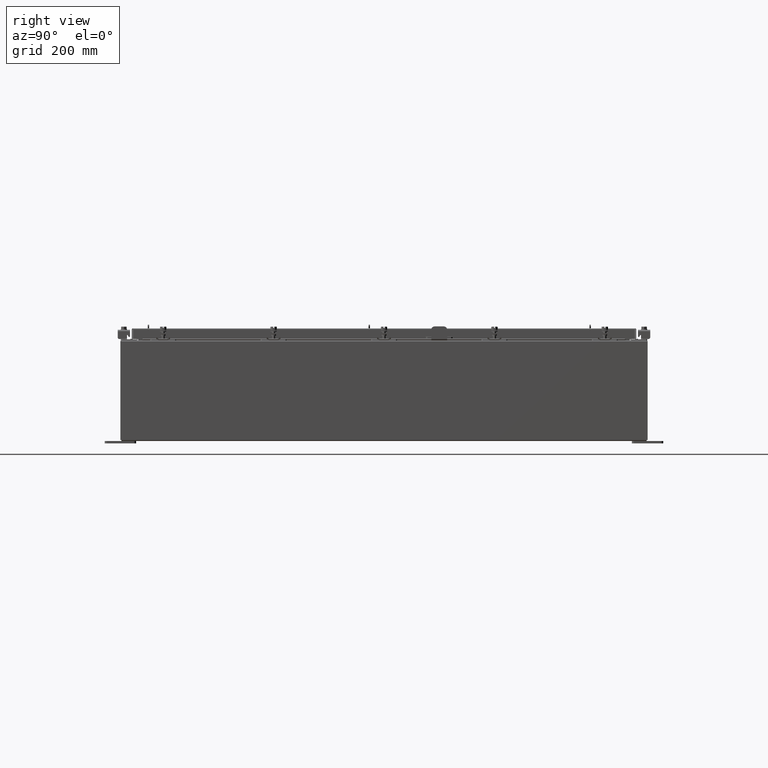
[diagram: clean part render]
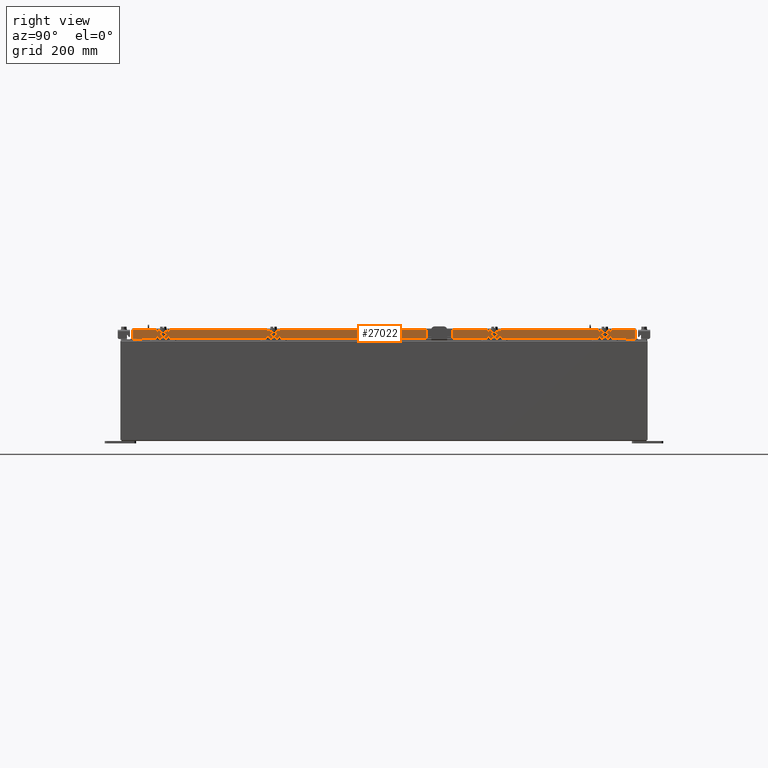
[diagram: same view with one face highlighted and labeled with its STEP entity id]
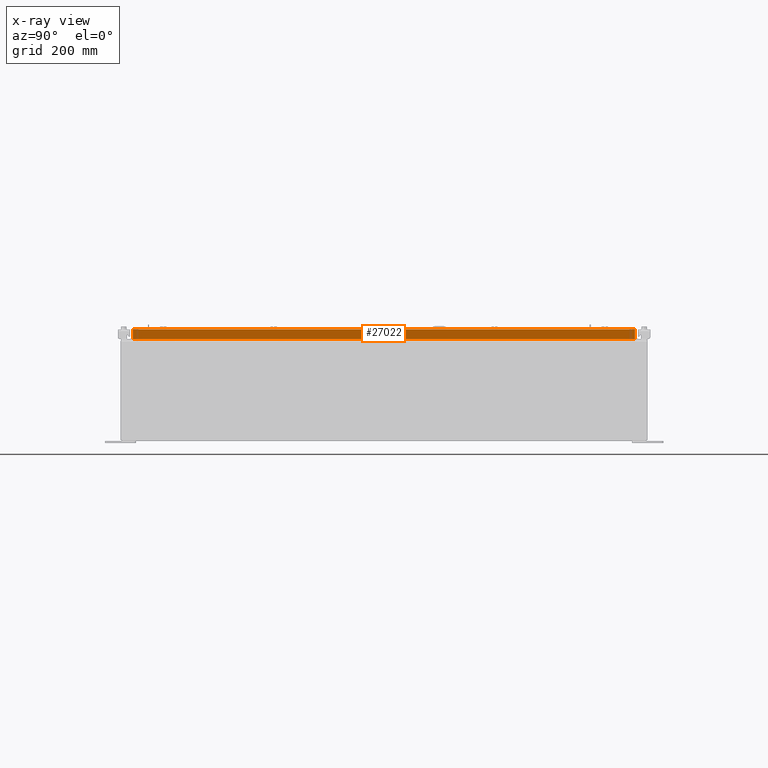
[diagram: x-ray of the same camera — body ghosted, the highlighted face saturated]
A machine part, right view. The second image highlights one B-rep face of the part: STEP entity #27022.
The next image is the same camera in x-ray: the body ghosted, the highlighted face saturated — about 0% of this face is hidden behind the body in this view.
In plain terms, the highlighted planar face has unit normal (1, 0, 0).
Its self-contained STEP definition (entity closure, byte-faithful):
#1 = ORIENTED_EDGE ( 'NONE', *, *, #649, .T. ) ;
#72 = ORIENTED_EDGE ( 'NONE', *, *, #772, .F. ) ;
#649 = EDGE_CURVE ( 'NONE', #7940, #16361, #14979, .T. ) ;
#772 = EDGE_CURVE ( 'NONE', #7940, #25375, #7423, .T. ) ;
#1001 = DIRECTION ( 'NONE',  ( 0.0000000000000000000, -1.000000000000000000, 0.0000000000000000000 ) ) ;
#2116 = CARTESIAN_POINT ( 'NONE',  ( 17.07799999999999200, -19.25515786437626200, -0.8500000000000018700 ) ) ;
#2824 = CARTESIAN_POINT ( 'NONE',  ( 17.07799999999999900, 20.00515786437626900, 1.880969331248393600E-013 ) ) ;
#2854 = DIRECTION ( 'NONE',  ( -2.818880942772360100E-015, -6.982962677686265900E-015, 1.000000000000000000 ) ) ;
#3100 = DIRECTION ( 'NONE',  ( 0.0000000000000000000, -1.000000000000000000, 0.0000000000000000000 ) ) ;
#3462 = CARTESIAN_POINT ( 'NONE',  ( 17.07799999999999200, 19.25515786437627600, -0.8500000000000018700 ) ) ;
#3679 = VERTEX_POINT ( 'NONE', #16695 ) ;
#4118 = CARTESIAN_POINT ( 'NONE',  ( 17.07799999999999200, 19.25515786437627200, -0.8500000000000018700 ) ) ;
#6137 = VECTOR ( 'NONE', #3100, 39.37007874015748100 ) ;
#6429 = CARTESIAN_POINT ( 'NONE',  ( 17.07799999999999900, 0.0000000000000000000, -0.08770000000000007000 ) ) ;
#6778 = LINE ( 'NONE', #26167, #6137 ) ;
#6895 = LINE ( 'NONE', #24482, #22406 ) ;
#7283 = CARTESIAN_POINT ( 'NONE',  ( 17.07800000000000300, 20.00515786437628000, -0.8499999999999996400 ) ) ;
#7423 = LINE ( 'NONE', #27038, #12350 ) ;
#7636 = CARTESIAN_POINT ( 'NONE',  ( 17.07799999999999900, -20.00515786437626500, -0.08770000000000007000 ) ) ;
#7940 = VERTEX_POINT ( 'NONE', #7283 ) ;
#8728 = VECTOR ( 'NONE', #2854, 39.37007874015748100 ) ;
#9056 = VECTOR ( 'NONE', #18172, 39.37007874015748100 ) ;
#9431 = VECTOR ( 'NONE', #21142, 39.37007874015748100 ) ;
#10496 = EDGE_CURVE ( 'NONE', #3679, #14080, #6895, .T. ) ;
#11288 = CARTESIAN_POINT ( 'NONE',  ( 17.07799999999999900, 0.0000000000000000000, 4.840166239667794100E-014 ) ) ;
#11923 = AXIS2_PLACEMENT_3D ( 'NONE', #11288, #25995, #13373 ) ;
#12350 = VECTOR ( 'NONE', #1001, 39.37007874015748100 ) ;
#13373 = DIRECTION ( 'NONE',  ( 2.818880942772360100E-015, 0.0000000000000000000, -1.000000000000000000 ) ) ;
#13968 = DIRECTION ( 'NONE',  ( -2.818880942772360100E-015, -6.982962677686265900E-015, 1.000000000000000000 ) ) ;
#13986 = LINE ( 'NONE', #3462, #9056 ) ;
#14080 = VERTEX_POINT ( 'NONE', #7636 ) ;
#14371 = EDGE_CURVE ( 'NONE', #16361, #14080, #15677, .T. ) ;
#14979 = LINE ( 'NONE', #2824, #8728 ) ;
#15677 = LINE ( 'NONE', #6429, #9431 ) ;
#16148 = EDGE_CURVE ( 'NONE', #23621, #3679, #6778, .T. ) ;
#16361 = VERTEX_POINT ( 'NONE', #19068 ) ;
#16695 = CARTESIAN_POINT ( 'NONE',  ( 17.07800000000000300, -20.00515786437626200, -0.8499999999999996400 ) ) ;
#18172 = DIRECTION ( 'NONE',  ( 0.0000000000000000000, -1.000000000000000000, 0.0000000000000000000 ) ) ;
#19068 = CARTESIAN_POINT ( 'NONE',  ( 17.07799999999999900, 20.00515786437626900, -0.08770000000000007000 ) ) ;
#20753 = ORIENTED_EDGE ( 'NONE', *, *, #24090, .F. ) ;
#21142 = DIRECTION ( 'NONE',  ( 0.0000000000000000000, -1.000000000000000000, 0.0000000000000000000 ) ) ;
#21304 = ORIENTED_EDGE ( 'NONE', *, *, #10496, .F. ) ;
#21798 = PLANE ( 'NONE',  #11923 ) ;
#22406 = VECTOR ( 'NONE', #13968, 39.37007874015748100 ) ;
#23478 = ORIENTED_EDGE ( 'NONE', *, *, #14371, .T. ) ;
#23621 = VERTEX_POINT ( 'NONE', #2116 ) ;
#23736 = FACE_OUTER_BOUND ( 'NONE', #24392, .T. ) ;
#24090 = EDGE_CURVE ( 'NONE', #25375, #23621, #13986, .T. ) ;
#24336 = ORIENTED_EDGE ( 'NONE', *, *, #16148, .F. ) ;
#24392 = EDGE_LOOP ( 'NONE', ( #21304, #24336, #20753, #72, #1, #23478 ) ) ;
#24482 = CARTESIAN_POINT ( 'NONE',  ( 17.07799999999999900, -20.00515786437626500, -0.07469999999999978000 ) ) ;
#25375 = VERTEX_POINT ( 'NONE', #4118 ) ;
#25995 = DIRECTION ( 'NONE',  ( 1.000000000000000000, 0.0000000000000000000, 2.818880942772360100E-015 ) ) ;
#26167 = CARTESIAN_POINT ( 'NONE',  ( 17.07800000000000300, -20.09399999999999800, -0.8499999999999996400 ) ) ;
#27022 = ADVANCED_FACE ( 'NONE', ( #23736 ), #21798, .T. ) ;
#27038 = CARTESIAN_POINT ( 'NONE',  ( 17.07800000000000300, -20.09399999999999800, -0.8499999999999996400 ) ) ;